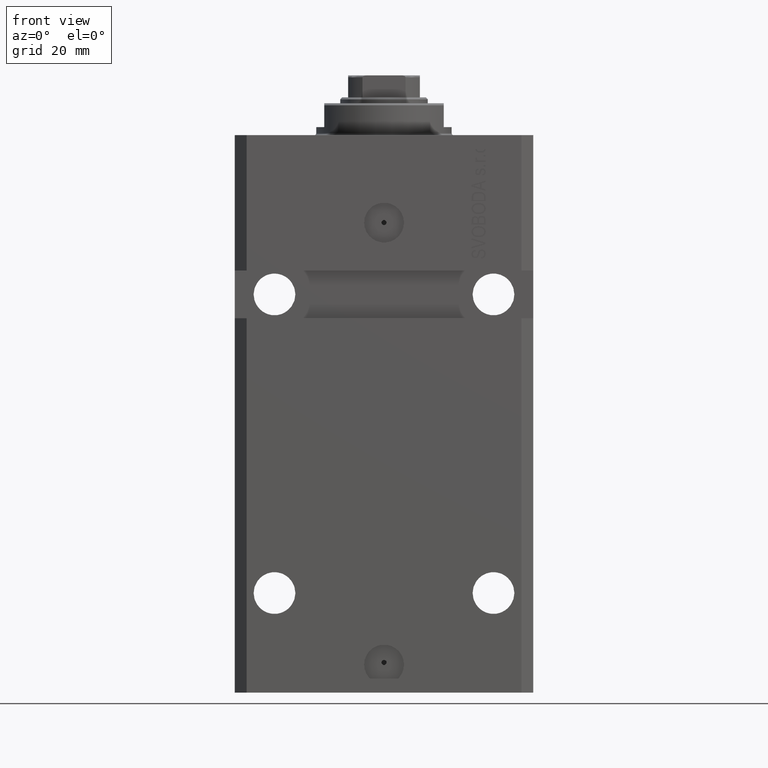
[diagram: clean part render]
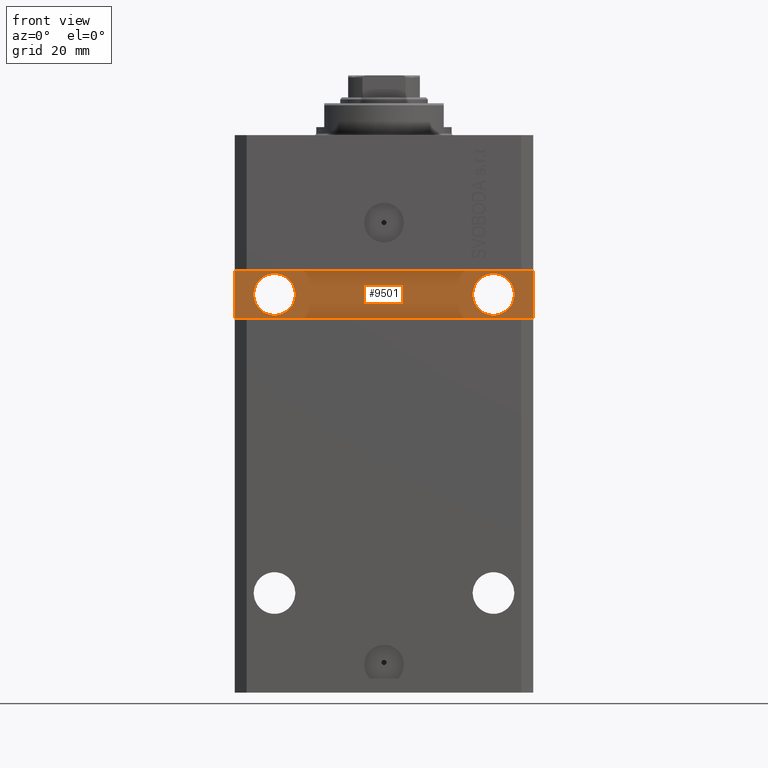
[diagram: same view with one face highlighted and labeled with its STEP entity id]
A machine part, front view. The second image highlights one B-rep face of the part: STEP entity #9501.
In plain terms, the highlighted planar face has unit normal (0, -1, 0).
Its self-contained STEP definition (entity closure, byte-faithful):
#427 = DIRECTION ( 'NONE',  ( 0.000000000000000000, 0.000000000000000000, -1.000000000000000000 ) ) ;
#1338 = CARTESIAN_POINT ( 'NONE',  ( 22.25000000000001421, -24.49999999999999289, -40.00000000000000000 ) ) ;
#1928 = VERTEX_POINT ( 'NONE', #12669 ) ;
#2546 = LINE ( 'NONE', #46397, #29352 ) ;
#2843 = VERTEX_POINT ( 'NONE', #29829 ) ;
#3222 = CARTESIAN_POINT ( 'NONE',  ( 32.75000000000000000, -24.49999999999999289, -40.00000000000000000 ) ) ;
#3396 = EDGE_LOOP ( 'NONE', ( #46454, #6010 ) ) ;
#3636 = VERTEX_POINT ( 'NONE', #14760 ) ;
#3649 = ORIENTED_EDGE ( 'NONE', *, *, #20471, .T. ) ;
#4258 = ORIENTED_EDGE ( 'NONE', *, *, #24944, .T. ) ;
#4284 = LINE ( 'NONE', #4776, #15272 ) ;
#4776 = CARTESIAN_POINT ( 'NONE',  ( -37.50000000000000000, -24.50000000000000000, -34.00000000000000000 ) ) ;
#4804 = PLANE ( 'NONE',  #36791 ) ;
#5281 = FACE_OUTER_BOUND ( 'NONE', #10991, .T. ) ;
#5363 = CARTESIAN_POINT ( 'NONE',  ( 37.49999999999999289, -24.49999999999999289, -45.99999999999999289 ) ) ;
#5472 = VECTOR ( 'NONE', #9469, 1000.000000000000000 ) ;
#6010 = ORIENTED_EDGE ( 'NONE', *, *, #46215, .F. ) ;
#6179 = CARTESIAN_POINT ( 'NONE',  ( -37.50000000000000000, -24.50000000000000000, -34.00000000000000000 ) ) ;
#8020 = EDGE_CURVE ( 'NONE', #33749, #17671, #11220, .T. ) ;
#8695 = CARTESIAN_POINT ( 'NONE',  ( 27.50000000000000711, -24.49999999999999289, -40.00000000000000000 ) ) ;
#8708 = CARTESIAN_POINT ( 'NONE',  ( -37.50000000000000000, -24.50000000000000000, -46.00000000000000000 ) ) ;
#9469 = DIRECTION ( 'NONE',  ( -1.000000000000000000, -9.251858538542972814E-17, -9.251858538542972814E-17 ) ) ;
#9501 = ADVANCED_FACE ( 'NONE', ( #22750, #11848, #5281 ), #4804, .T. ) ;
#10991 = EDGE_LOOP ( 'NONE', ( #3649, #35765, #4258, #11417 ) ) ;
#11220 = CIRCLE ( 'NONE', #21303, 5.249999999999994671 ) ;
#11417 = ORIENTED_EDGE ( 'NONE', *, *, #44486, .T. ) ;
#11848 = FACE_BOUND ( 'NONE', #18582, .T. ) ;
#12668 = DIRECTION ( 'NONE',  ( 1.101411730780568590E-16, -1.000000000000000000, 0.000000000000000000 ) ) ;
#12669 = CARTESIAN_POINT ( 'NONE',  ( 37.49999999999999289, -24.49999999999999289, -33.99999999999999289 ) ) ;
#14686 = ORIENTED_EDGE ( 'NONE', *, *, #31078, .F. ) ;
#14760 = CARTESIAN_POINT ( 'NONE',  ( 37.49999999999999289, -24.49999999999999289, -45.99999999999999289 ) ) ;
#14876 = DIRECTION ( 'NONE',  ( 1.171720209325604191E-16, -1.000000000000000000, 0.000000000000000000 ) ) ;
#14981 = CIRCLE ( 'NONE', #17321, 5.249999999999997335 ) ;
#15272 = VECTOR ( 'NONE', #427, 1000.000000000000000 ) ;
#15731 = DIRECTION ( 'NONE',  ( 9.251858538542972814E-17, -1.000000000000000000, 0.000000000000000000 ) ) ;
#15975 = DIRECTION ( 'NONE',  ( 1.000000000000000000, 0.000000000000000000, 0.000000000000000000 ) ) ;
#16082 = CIRCLE ( 'NONE', #40785, 5.249999999999994671 ) ;
#16783 = CARTESIAN_POINT ( 'NONE',  ( -27.49999999999999289, -24.50000000000000000, -40.00000000000000711 ) ) ;
#17321 = AXIS2_PLACEMENT_3D ( 'NONE', #16783, #12668, #45597 ) ;
#17473 = CARTESIAN_POINT ( 'NONE',  ( 37.49999999999999289, -24.49999999999999289, -33.99999999999999289 ) ) ;
#17671 = VERTEX_POINT ( 'NONE', #1338 ) ;
#18582 = EDGE_LOOP ( 'NONE', ( #23197, #14686 ) ) ;
#18902 = AXIS2_PLACEMENT_3D ( 'NONE', #21462, #32815, #36220 ) ;
#20426 = VERTEX_POINT ( 'NONE', #6179 ) ;
#20471 = EDGE_CURVE ( 'NONE', #32199, #3636, #2546, .T. ) ;
#21303 = AXIS2_PLACEMENT_3D ( 'NONE', #47564, #14876, #43687 ) ;
#21462 = CARTESIAN_POINT ( 'NONE',  ( -27.49999999999999289, -24.50000000000000000, -40.00000000000000711 ) ) ;
#22750 = FACE_BOUND ( 'NONE', #3396, .T. ) ;
#23197 = ORIENTED_EDGE ( 'NONE', *, *, #35097, .F. ) ;
#24083 = CARTESIAN_POINT ( 'NONE',  ( -32.74999999999999289, -24.50000000000000000, -40.00000000000000711 ) ) ;
#24944 = EDGE_CURVE ( 'NONE', #1928, #20426, #31996, .T. ) ;
#26632 = DIRECTION ( 'NONE',  ( 1.000000000000000000, 9.251858538542972814E-17, 0.000000000000000000 ) ) ;
#27381 = VECTOR ( 'NONE', #45580, 1000.000000000000000 ) ;
#29352 = VECTOR ( 'NONE', #42744, 1000.000000000000000 ) ;
#29829 = CARTESIAN_POINT ( 'NONE',  ( -22.24999999999999645, -24.50000000000000000, -40.00000000000000711 ) ) ;
#31078 = EDGE_CURVE ( 'NONE', #42777, #2843, #14981, .T. ) ;
#31783 = LINE ( 'NONE', #5363, #27381 ) ;
#31996 = LINE ( 'NONE', #17473, #5472 ) ;
#32199 = VERTEX_POINT ( 'NONE', #8708 ) ;
#32815 = DIRECTION ( 'NONE',  ( 1.101411730780568590E-16, -1.000000000000000000, 0.000000000000000000 ) ) ;
#32855 = EDGE_CURVE ( 'NONE', #3636, #1928, #31783, .T. ) ;
#33749 = VERTEX_POINT ( 'NONE', #3222 ) ;
#34362 = CARTESIAN_POINT ( 'NONE',  ( 2.191435984341280931E-15, -24.49999999999999645, 0.000000000000000000 ) ) ;
#34841 = DIRECTION ( 'NONE',  ( 1.171720209325604191E-16, -1.000000000000000000, 0.000000000000000000 ) ) ;
#35097 = EDGE_CURVE ( 'NONE', #2843, #42777, #38998, .T. ) ;
#35765 = ORIENTED_EDGE ( 'NONE', *, *, #32855, .T. ) ;
#36220 = DIRECTION ( 'NONE',  ( 1.000000000000000000, 0.000000000000000000, 0.000000000000000000 ) ) ;
#36791 = AXIS2_PLACEMENT_3D ( 'NONE', #34362, #15731, #26632 ) ;
#38998 = CIRCLE ( 'NONE', #18902, 5.249999999999997335 ) ;
#40785 = AXIS2_PLACEMENT_3D ( 'NONE', #8695, #34841, #15975 ) ;
#42744 = DIRECTION ( 'NONE',  ( 1.000000000000000000, 9.251858538542972814E-17, 9.251858538542972814E-17 ) ) ;
#42777 = VERTEX_POINT ( 'NONE', #24083 ) ;
#43687 = DIRECTION ( 'NONE',  ( 1.000000000000000000, 0.000000000000000000, 0.000000000000000000 ) ) ;
#44486 = EDGE_CURVE ( 'NONE', #20426, #32199, #4284, .T. ) ;
#45580 = DIRECTION ( 'NONE',  ( 0.000000000000000000, 0.000000000000000000, 1.000000000000000000 ) ) ;
#45597 = DIRECTION ( 'NONE',  ( 1.000000000000000000, 0.000000000000000000, 0.000000000000000000 ) ) ;
#46215 = EDGE_CURVE ( 'NONE', #17671, #33749, #16082, .T. ) ;
#46397 = CARTESIAN_POINT ( 'NONE',  ( -37.50000000000000000, -24.50000000000000000, -46.00000000000000000 ) ) ;
#46454 = ORIENTED_EDGE ( 'NONE', *, *, #8020, .F. ) ;
#47564 = CARTESIAN_POINT ( 'NONE',  ( 27.50000000000000711, -24.49999999999999289, -40.00000000000000000 ) ) ;